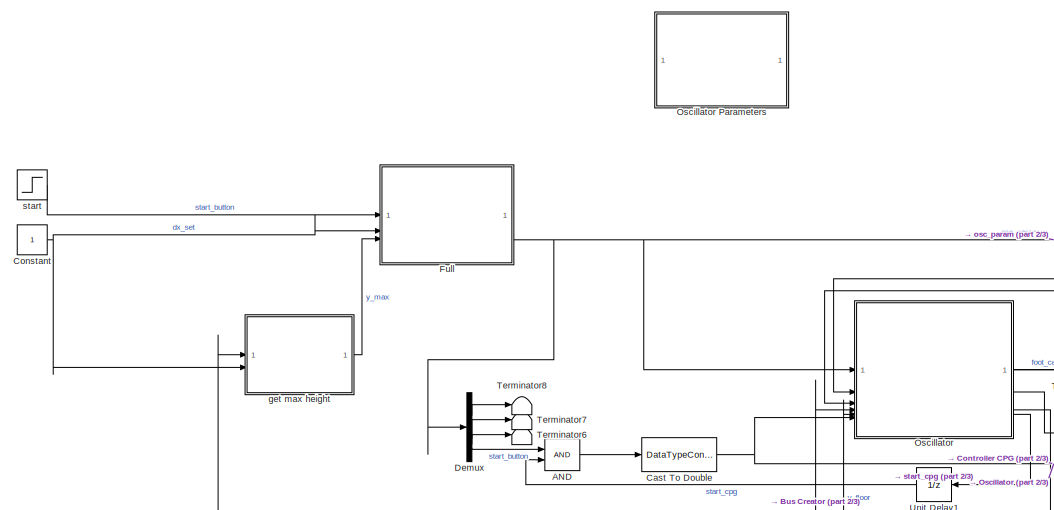
[diagram: root canvas - part 1/3, middle left region]
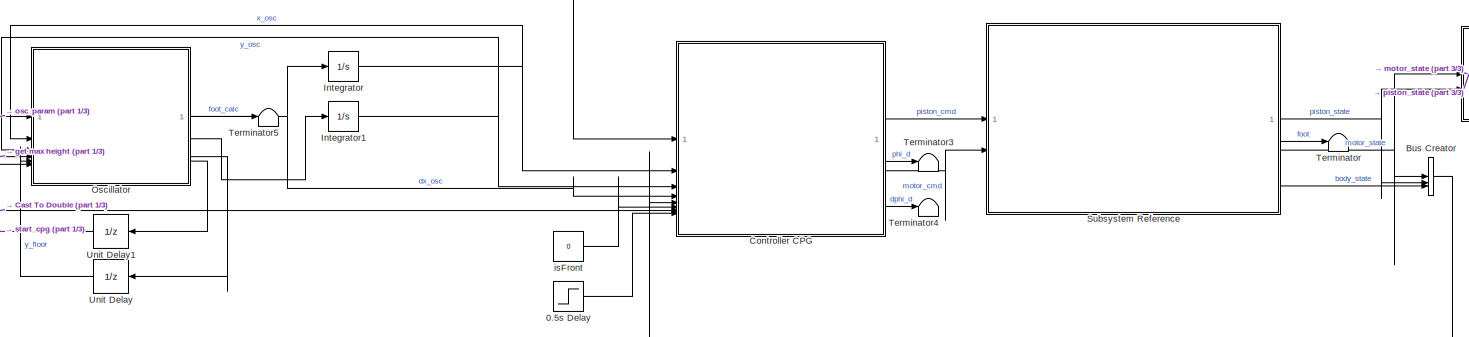
[diagram: root canvas - part 2/3, central region]
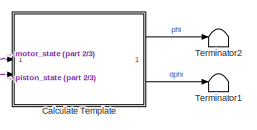
[diagram: root canvas - part 3/3, middle right region]
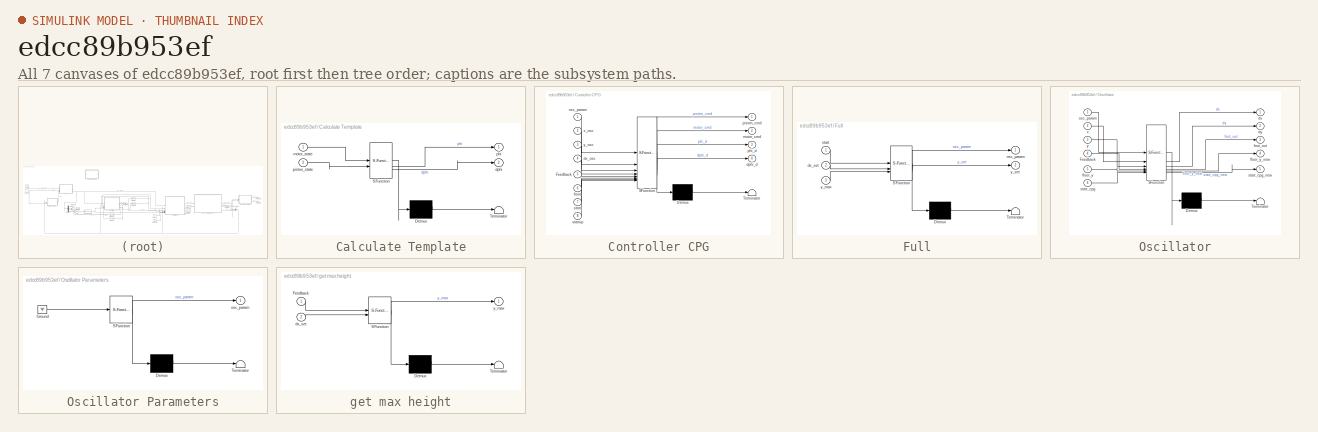
[diagram: thumbnail index - all 7 canvases of the model, root first then tree order]
MODEL slx_edcc89b953ef
KIND model
CONFIG AbsTol = 1e-5
CONFIG EnableMultiTasking = off
CONFIG FixedStep = auto
CONFIG InitFcn = parameters;\ninitBusObjects;\nloadCPGParam_startup;
CONFIG MaxStep = 1e-3
CONFIG MinStep = auto
CONFIG RelTol = 1e-5
CONFIG SampleTimeConstraint = Unconstrained
CONFIG SolverName = ode113
CONFIG StartTime = 0.0
CONFIG StopTime = 10
BLOCK [Step] 0.5s Delay
  SampleTime = 0
  Time = 0.001
BLOCK [Logic] AND
  AllPortsSameDT = off
  IconShape = distinctive
  OutDataTypeStr = boolean
BLOCK [BusCreator] Bus Creator
  DisplayOption = bar
  InheritFromInputs = off
  Inputs = 3
  OutDataTypeStr = Bus: State
BLOCK [SubSystem] Calculate Template
  ErrorFcn = Stateflow.Translate.translate
  PermitHierarchicalResolution = ExplicitOnly
  SFBlockType = MATLAB Function
  TreatAsAtomicUnit = on
BLOCK [Demux] Calculate Template/ Demux 
  Outputs = 1
BLOCK [S-Function] Calculate Template/ SFunction 
  EnableBusSupport = on
  FunctionName = sf_sfun
  PortCounts = [2 3]
  SFcnIsStateOwnerBlock = off
  SFunctionDeploymentMode = off
  Tag = Stateflow S-Function 7
BLOCK [Terminator] Calculate Template/ Terminator 
BLOCK [Outport] Calculate Template/dphi
  Port = 2
BLOCK [Inport] Calculate Template/motor_state
BLOCK [Outport] Calculate Template/phi
BLOCK [Inport] Calculate Template/piston_state
  Port = 2
BLOCK [DataTypeConversion] Cast To Double
  OutDataTypeStr = double
  RndMeth = Floor
  SaturateOnIntegerOverflow = off
BLOCK [Constant] Constant
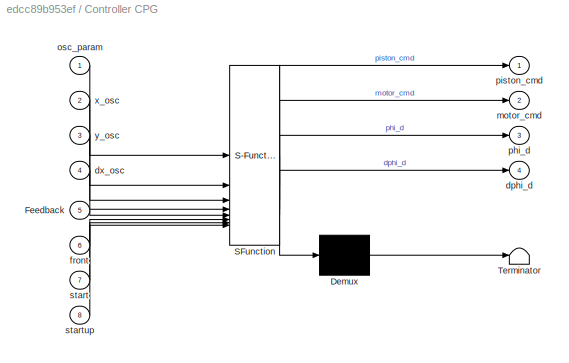
BLOCK [SubSystem] Controller CPG
  ErrorFcn = Stateflow.Translate.translate
  PermitHierarchicalResolution = ExplicitOnly
  SFBlockType = MATLAB Function
  TreatAsAtomicUnit = on
BLOCK [Demux] Controller CPG/ Demux 
  Outputs = 1
BLOCK [S-Function] Controller CPG/ SFunction 
  EnableBusSupport = on
  FunctionName = sf_sfun
  PortCounts = [8 5]
  SFcnIsStateOwnerBlock = off
  SFunctionDeploymentMode = off
  Tag = Stateflow S-Function 3
BLOCK [Terminator] Controller CPG/ Terminator 
BLOCK [Inport] Controller CPG/Feedback
  Port = 5
BLOCK [Outport] Controller CPG/dphi_d
  Port = 4
BLOCK [Inport] Controller CPG/dx_osc
  Port = 4
BLOCK [Inport] Controller CPG/front
  Port = 6
BLOCK [Outport] Controller CPG/motor_cmd
  Port = 2
BLOCK [Inport] Controller CPG/osc_param
BLOCK [Outport] Controller CPG/phi_d
  Port = 3
BLOCK [Outport] Controller CPG/piston_cmd
BLOCK [Inport] Controller CPG/start
  Port = 7
BLOCK [Inport] Controller CPG/startup
  Port = 8
BLOCK [Inport] Controller CPG/x_osc
  Port = 2
BLOCK [Inport] Controller CPG/y_osc
  Port = 3
BLOCK [Demux] Demux
BLOCK [SubSystem] Full
  ErrorFcn = Stateflow.Translate.translate
  PermitHierarchicalResolution = ExplicitOnly
  SFBlockType = MATLAB Function
  TreatAsAtomicUnit = on
BLOCK [Demux] Full/ Demux 
  Outputs = 1
BLOCK [S-Function] Full/ SFunction 
  EnableBusSupport = on
  FunctionName = sf_sfun
  Parameters = kx_sol,tst_sol,tsw_sol,y_sol
  PortCounts = [3 3]
  SFcnIsStateOwnerBlock = off
  SFunctionDeploymentMode = off
  Tag = Stateflow S-Function 9
BLOCK [Terminator] Full/ Terminator 
BLOCK [Inport] Full/dx_set
  Port = 2
BLOCK [Outport] Full/osc_param
BLOCK [Inport] Full/start
BLOCK [Inport] Full/y_max
  Port = 3
BLOCK [Outport] Full/y_set
  Port = 2
BLOCK [Integrator] Integrator
  InitialCondition = Init.CPG(1)
BLOCK [Integrator] Integrator1
  InitialCondition = Init.CPG(2)
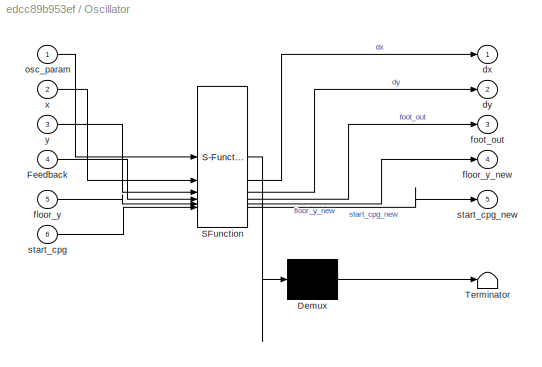
BLOCK [SubSystem] Oscillator
  ErrorFcn = Stateflow.Translate.translate
  PermitHierarchicalResolution = ExplicitOnly
  SFBlockType = MATLAB Function
  TreatAsAtomicUnit = on
BLOCK [SubSystem] Oscillator Parameters
  Commented = on
  ErrorFcn = Stateflow.Translate.translate
  PermitHierarchicalResolution = ExplicitOnly
  SFBlockType = MATLAB Function
  TreatAsAtomicUnit = on
BLOCK [Demux] Oscillator Parameters/ Demux 
  Outputs = 1
BLOCK [Ground] Oscillator Parameters/ Ground 
BLOCK [S-Function] Oscillator Parameters/ SFunction 
  EnableBusSupport = on
  FunctionName = sf_sfun
  Parameters = CPG
  PortCounts = [1 2]
  SFcnIsStateOwnerBlock = off
  SFunctionDeploymentMode = off
  Tag = Stateflow S-Function 6
BLOCK [Terminator] Oscillator Parameters/ Terminator 
BLOCK [Outport] Oscillator Parameters/osc_param
BLOCK [Demux] Oscillator/ Demux 
  Outputs = 1
BLOCK [S-Function] Oscillator/ SFunction 
  EnableBusSupport = on
  FunctionName = sf_sfun
  PortCounts = [6 6]
  SFcnIsStateOwnerBlock = off
  SFunctionDeploymentMode = off
  Tag = Stateflow S-Function 4
BLOCK [Terminator] Oscillator/ Terminator 
BLOCK [Inport] Oscillator/Feedback
  Port = 4
BLOCK [Outport] Oscillator/dx
BLOCK [Outport] Oscillator/dy
  Port = 2
BLOCK [Inport] Oscillator/floor_y
  Port = 5
BLOCK [Outport] Oscillator/floor_y_new
  Port = 4
BLOCK [Outport] Oscillator/foot_out
  Port = 3
BLOCK [Inport] Oscillator/osc_param
BLOCK [Inport] Oscillator/start_cpg
  Port = 6
BLOCK [Outport] Oscillator/start_cpg_new
  Port = 5
BLOCK [Inport] Oscillator/x
  Port = 2
BLOCK [Inport] Oscillator/y
  Port = 3
BLOCK [SubSystem] Subsystem Reference
  PortSchema = {"entries":[{"content":{"sides":[{"content":{"connectorIds":["In1","In2"]},"type":"ConnectorPlacement.EquallySpacedRectSide","uuid":"d72a35c2-6749-4eaa-8584-fa64d0dc3e1c"},{"content":{"connectorIds":["Out2","Out1","Out3","Out4"],"side":"RIGHT"},"type":"ConnectorPlacement.EquallySpacedRectSide","uuid":"d76b7912-ed10-4044-b6e4-c8872f57f584"},{"content":{"side":"TOP"},"type":"ConnectorPlacement.Equal...<+249ch>
  ReferencedSubsystem = SLemba_model
BLOCK [Terminator] Terminator
BLOCK [Terminator] Terminator1
BLOCK [Terminator] Terminator2
BLOCK [Terminator] Terminator3
BLOCK [Terminator] Terminator4
BLOCK [Terminator] Terminator5
BLOCK [Terminator] Terminator6
BLOCK [Terminator] Terminator7
BLOCK [Terminator] Terminator8
BLOCK [UnitDelay] Unit Delay
  HasFrameUpgradeWarning = on
  NameLocation = top
  SampleTime = -1
BLOCK [UnitDelay] Unit Delay1
  HasFrameUpgradeWarning = on
  NameLocation = top
  SampleTime = -1
BLOCK [SubSystem] get max height
  ErrorFcn = Stateflow.Translate.translate
  PermitHierarchicalResolution = ExplicitOnly
  SFBlockType = MATLAB Function
  TreatAsAtomicUnit = on
BLOCK [Demux] get max height/ Demux 
  Outputs = 1
BLOCK [S-Function] get max height/ SFunction 
  EnableBusSupport = on
  FunctionName = sf_sfun
  Parameters = y_sol
  PortCounts = [2 2]
  SFcnIsStateOwnerBlock = off
  SFunctionDeploymentMode = off
  Tag = Stateflow S-Function 12
BLOCK [Terminator] get max height/ Terminator 
BLOCK [Inport] get max height/Feedback
BLOCK [Inport] get max height/dx_set
  Port = 2
BLOCK [Outport] get max height/y_max
BLOCK [Constant] isFront
  Value = 0
BLOCK [Step] start
  SampleTime = 0
  Time = 0.002
LINE 0.5s Delay:1 -> Controller CPG:8
LINE AND:1 -> Cast To Double:1
NET Bus Creator:1 -> Controller CPG:5, Oscillator:4, get max height:1
LINE Calculate Template:1 -> Terminator2:1
LINE Calculate Template:2 -> Terminator1:1
NET Cast To Double:1 -> Controller CPG:7, Oscillator:6
NET Constant:1 -> Full:2, get max height:2
LINE Controller CPG:1 -> Subsystem Reference:1
LINE Controller CPG:2 -> Subsystem Reference:2
LINE Controller CPG:3 -> Terminator3:1
LINE Controller CPG:4 -> Terminator4:1
LINE Demux:1 -> Terminator8:1
LINE Demux:2 -> Terminator7:1
LINE Demux:3 -> Terminator6:1
LINE Demux:4 -> AND:1
NET Full:1 -> Controller CPG:1, Demux:1, Oscillator:1
NET Integrator1:1 -> Controller CPG:3, Oscillator:3
NET Integrator:1 -> Controller CPG:2, Oscillator:2
NET Oscillator:1 -> Controller CPG:4, Integrator:1
LINE Oscillator:2 -> Integrator1:1
LINE Oscillator:3 -> Terminator5:1
LINE Oscillator:4 -> Unit Delay:1
LINE Oscillator:5 -> Unit Delay1:1
NET Subsystem Reference:1 -> Bus Creator:2, Calculate Template:2
NET Subsystem Reference:2 -> Bus Creator:1, Calculate Template:1
LINE Subsystem Reference:3 -> Terminator:1
LINE Subsystem Reference:4 -> Bus Creator:3
LINE Unit Delay1:1 -> AND:2
LINE Unit Delay:1 -> Oscillator:5
LINE get max height:1 -> Full:3
LINE isFront:1 -> Controller CPG:6
LINE start:1 -> Full:1
note: NET lines group one-source signal fan-out (src -> all destinations, sorted); 1:1 wires keep LINE
CHART Controller CPG states=1 transitions=1
  STATE_LABEL 'eML_blk_kernel()'
  STATE_LABEL 'SCRIPT:\nfunction [piston_cmd,motor_cmd,phi_d,dphi_d] = Controller(osc_param, x_osc,y_osc,dx_osc,Feedback,front, start, startup)\n\npersistent state_control % 1 = wait, 2 = startup, 3 = stop\n\nif isempty(state_control)\n    state_control = 1;\nend\n\n\nmotor_state = Feedback.Motor; piston_state = Feedback.Piston;\n\nkx = osc_param(3);\n\nl = piston_state.p;\ndl = piston_state.v;\nth = motor_state.q;\n\nif (front)\n...<+1046ch>'
CHART Oscillator states=1 transitions=1
  STATE_LABEL 'eML_blk_kernel()'
  STATE_LABEL 'SCRIPT:\nfunction [dx,dy,foot_out,floor_y_new,start_cpg_new] = CPG(osc_param,x,y,Feedback, floor_y, start_cpg)%,dy_lift, fit)%dq_osc = CPG(input_osc)%\n% x = input_osc.x_osc; y = input_osc.y_osc; osc_param = input_osc.osc_param;\n% Body_state = input_osc.Body_state; Piston_state = input_osc.Piston_state; Motor_state = input_osc.Motor_state;\n\npersistent thrown\n\nif isempty(thrown)\n    thrown = 0;\nend\n\n...<+2607ch>'
CHART Oscillator Parameters states=1 transitions=1
  STATE_LABEL 'eML_blk_kernel()'
  STATE_LABEL 'SCRIPT:\nfunction osc_param = osc_paramCalc(CPG)\n\n% persistent osc_paramVal\n% \n% if isempty(osc_paramVal)\n%     out = load("PSO_runs/sol.mat");\n%     out = out.out;\n%     tst = out.simParams.tst;\n%     kx = out.simParams.kx;\n% \n%     tsw = out.out.BestSol.Position(4);\n% \n%     osc_paramVal = [tst,tsw,kx];\n% end\n\ntst = CPG.tst;\nkx = CPG.kx;\ntsw = CPG.tsw;\n\nosc_param = [tst,tsw,kx];\n'
CHART Calculate Template states=1 transitions=1
  STATE_LABEL 'eML_blk_kernel()'
  STATE_LABEL 'SCRIPT:\nfunction [phi,dphi] = fcn(motor_state,piston_state)\n\nphi = phi_calc(motor_state.q,piston_state.p);\ndphi = dphi_calc(motor_state.q,piston_state.p,motor_state.w,piston_state.v);\n'
CHART Full states=1 transitions=1
  STATE_LABEL 'eML_blk_kernel()'
  STATE_LABEL 'SCRIPT:\nfunction [osc_param,y_set] = osc_paramCalc(tst_sol, kx_sol, tsw_sol,start, dx_set,y_max, y_sol)\n\n% persistent osc_paramVal\n% \n% if isempty(osc_paramVal)\n%     out = load("PSO_runs/sol.mat");\n%     out = out.out;\n%     tst = out.simParams.tst;\n%     kx = out.simParams.kx;\n% \n%     tsw = out.out.BestSol.Position(4);\n% \n%     osc_paramVal = [tst,tsw,kx];\n% end\n\nk_h = 2;\n\npersistent state % 0 ...<+418ch>'
CHART get max height states=1 transitions=1
  STATE_LABEL 'eML_blk_kernel()'
  STATE_LABEL 'SCRIPT:\nfunction y_max = fcn(Feedback,dx_set,y_sol)\n\nBody = Feedback.Body; Piston = Feedback.Piston;\n\npersistent y_maxVal % previous maximum height of hop\n\nif isempty(y_maxVal)\n    y_maxVal = polyval(y_sol,dx_set);\nend\n\nif (abs(Body.dy)<0.05 && Body.ddy < 0 && Piston.p <= 0)\n    y_maxVal = Body.y;\nend\n\ny_max = y_maxVal;\n'
CHART  states=0 transitions=0
CHART  states=0 transitions=0
CHART  states=0 transitions=0
CHART  states=0 transitions=0
CHART  states=0 transitions=0
CHART  states=0 transitions=0
